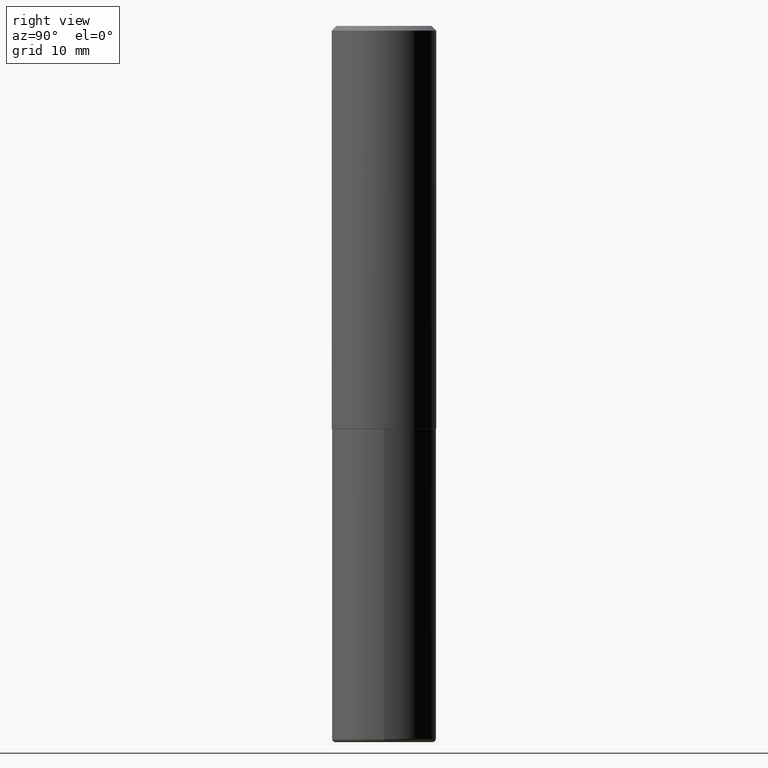
[diagram: clean part render]
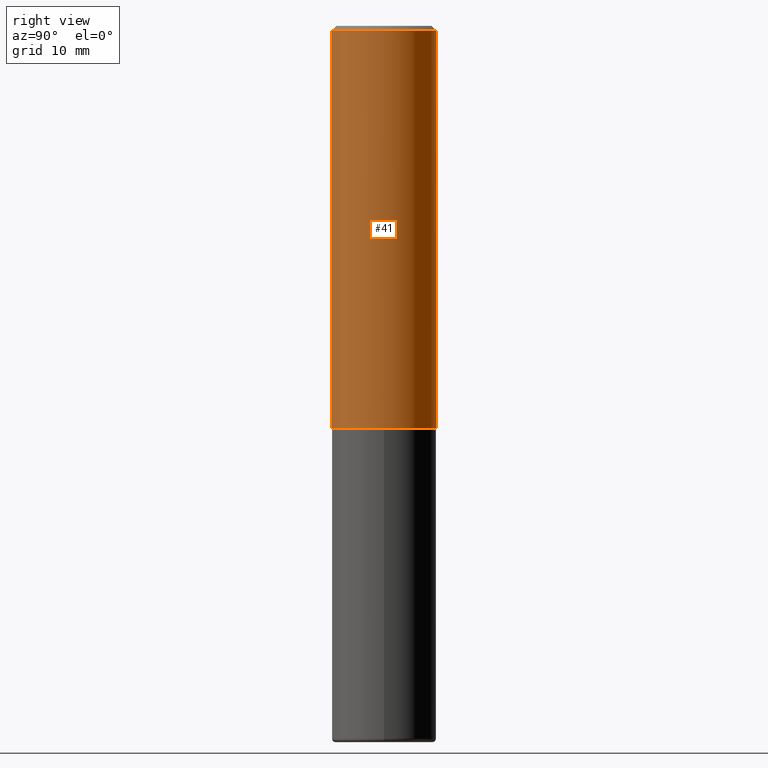
[diagram: same view with one face highlighted and labeled with its STEP entity id]
A machine part, right view. The second image highlights one B-rep face of the part: STEP entity #41.
In plain terms, the highlighted cylindrical surface (partial cylindrical patch) has radius 5.5563 mm, axis along (-0, 0, 1).
Its self-contained STEP definition (entity closure, byte-faithful):
#1 = EDGE_CURVE ( 'NONE', #226, #334, #230, .T. ) ;
#9 = CIRCLE ( 'NONE', #235, 0.2187499999999999445 ) ;
#12 = ORIENTED_EDGE ( 'NONE', *, *, #1, .T. ) ;
#41 = ADVANCED_FACE ( 'NONE', ( #71 ), #394, .T. ) ;
#49 = DIRECTION ( 'NONE',  ( -6.982962677686265922E-15, -1.000000000000000000, 3.492075048627833097E-15 ) ) ;
#58 = DIRECTION ( 'NONE',  ( -2.445054220858351343E-29, 3.492075048627833097E-15, 1.000000000000000000 ) ) ;
#71 = FACE_OUTER_BOUND ( 'NONE', #103, .T. ) ;
#73 = DIRECTION ( 'NONE',  ( -2.445054220858351343E-29, 3.492075048627833097E-15, 1.000000000000000000 ) ) ;
#75 = CARTESIAN_POINT ( 'NONE',  ( 0.000000000000000000, 0.000000000000000000, 0.000000000000000000 ) ) ;
#102 = ORIENTED_EDGE ( 'NONE', *, *, #356, .T. ) ;
#103 = EDGE_LOOP ( 'NONE', ( #102, #12, #205, #350 ) ) ;
#150 = VERTEX_POINT ( 'NONE', #175 ) ;
#163 = AXIS2_PLACEMENT_3D ( 'NONE', #75, #200, #49 ) ;
#169 = CARTESIAN_POINT ( 'NONE',  ( 1.527523085743870843E-15, 0.2187499999999998890, -0.02000000000000081574 ) ) ;
#175 = CARTESIAN_POINT ( 'NONE',  ( -1.500733937012521346E-15, -0.2187500000000000278, -0.01999999999999928571 ) ) ;
#200 = DIRECTION ( 'NONE',  ( -2.445054220858351343E-29, 3.492075048627833097E-15, 1.000000000000000000 ) ) ;
#205 = ORIENTED_EDGE ( 'NONE', *, *, #288, .F. ) ;
#207 = DIRECTION ( 'NONE',  ( -2.445054220858351343E-29, 3.492075048627833097E-15, 1.000000000000000000 ) ) ;
#209 = CARTESIAN_POINT ( 'NONE',  ( 4.123583943477609610E-29, -5.889384569510841777E-15, -1.686500000000000110 ) ) ;
#222 = AXIS2_PLACEMENT_3D ( 'NONE', #209, #409, #376 ) ;
#226 = VERTEX_POINT ( 'NONE', #247 ) ;
#230 = LINE ( 'NONE', #329, #333 ) ;
#235 = AXIS2_PLACEMENT_3D ( 'NONE', #308, #207, #343 ) ;
#247 = CARTESIAN_POINT ( 'NONE',  ( 1.554312234475240653E-15, 0.2187499999999943101, -1.686500000000000998 ) ) ;
#260 = VERTEX_POINT ( 'NONE', #346 ) ;
#268 = EDGE_CURVE ( 'NONE', #260, #150, #314, .T. ) ;
#288 = EDGE_CURVE ( 'NONE', #150, #334, #9, .T. ) ;
#308 = CARTESIAN_POINT ( 'NONE',  ( 4.890108441716715262E-31, -6.984150097255683598E-17, -0.02000000000000005246 ) ) ;
#309 = CARTESIAN_POINT ( 'NONE',  ( -1.527523085743871237E-15, -0.2187500000000000833, 7.638914168873387857E-16 ) ) ;
#314 = LINE ( 'NONE', #309, #386 ) ;
#329 = CARTESIAN_POINT ( 'NONE',  ( 1.554312234475219551E-15, 0.2187500000000000833, -7.638914168873387857E-16 ) ) ;
#333 = VECTOR ( 'NONE', #73, 39.37007874015748143 ) ;
#334 = VERTEX_POINT ( 'NONE', #169 ) ;
#343 = DIRECTION ( 'NONE',  ( -6.982962677686265922E-15, -1.000000000000000000, 3.492862791899308860E-15 ) ) ;
#346 = CARTESIAN_POINT ( 'NONE',  ( -1.527523085743831005E-15, -0.2187500000000061062, -1.686499999999999444 ) ) ;
#350 = ORIENTED_EDGE ( 'NONE', *, *, #268, .F. ) ;
#356 = EDGE_CURVE ( 'NONE', #260, #226, #401, .T. ) ;
#376 = DIRECTION ( 'NONE',  ( -6.982962677686265922E-15, -1.000000000000000000, 3.746534391310985612E-15 ) ) ;
#386 = VECTOR ( 'NONE', #58, 39.37007874015748143 ) ;
#394 = CYLINDRICAL_SURFACE ( 'NONE', #163, 0.2187500000000000833 ) ;
#401 = CIRCLE ( 'NONE', #222, 0.2187500000000002220 ) ;
#409 = DIRECTION ( 'NONE',  ( -2.445054220858351343E-29, 3.492075048627833097E-15, 1.000000000000000000 ) ) ;